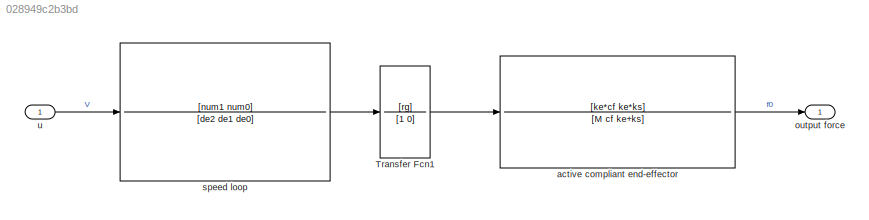
MODEL slx_028949c2b3bd
KIND model
CONFIG AbsTol = auto
CONFIG EnableMultiTasking = off
CONFIG FixedStep = auto
CONFIG MaxStep = auto
CONFIG MinStep = auto
CONFIG RelTol = 1e-3
CONFIG SampleTimeConstraint = Unconstrained
CONFIG SolverName = VariableStepAuto
CONFIG StartTime = 0.0
CONFIG StopTime = 10.0
BLOCK [TransferFcn] Transfer Fcn1
  Denominator = [1 0]
  Numerator = [rg]
BLOCK [TransferFcn] active compliant end-effector
  Denominator = [M cf ke+ks]
  Numerator = [ke*cf ke*ks]
BLOCK [Outport] output force
  VectorParamsAs1DForOutWhenUnconnected = off
BLOCK [TransferFcn] speed loop
  Denominator = [de2 de1 de0]
  Numerator = [num1 num0]
BLOCK [Inport] u
LINE Transfer Fcn1:1 -> active compliant end-effector:1
LINE active compliant end-effector:1 -> output force:1
LINE speed loop:1 -> Transfer Fcn1:1
LINE u:1 -> speed loop:1
